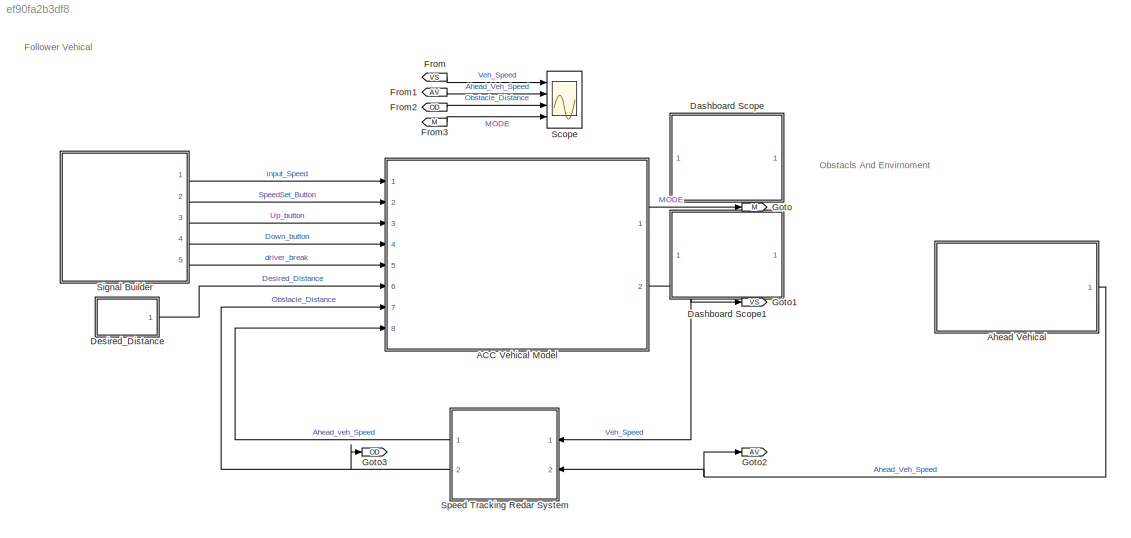
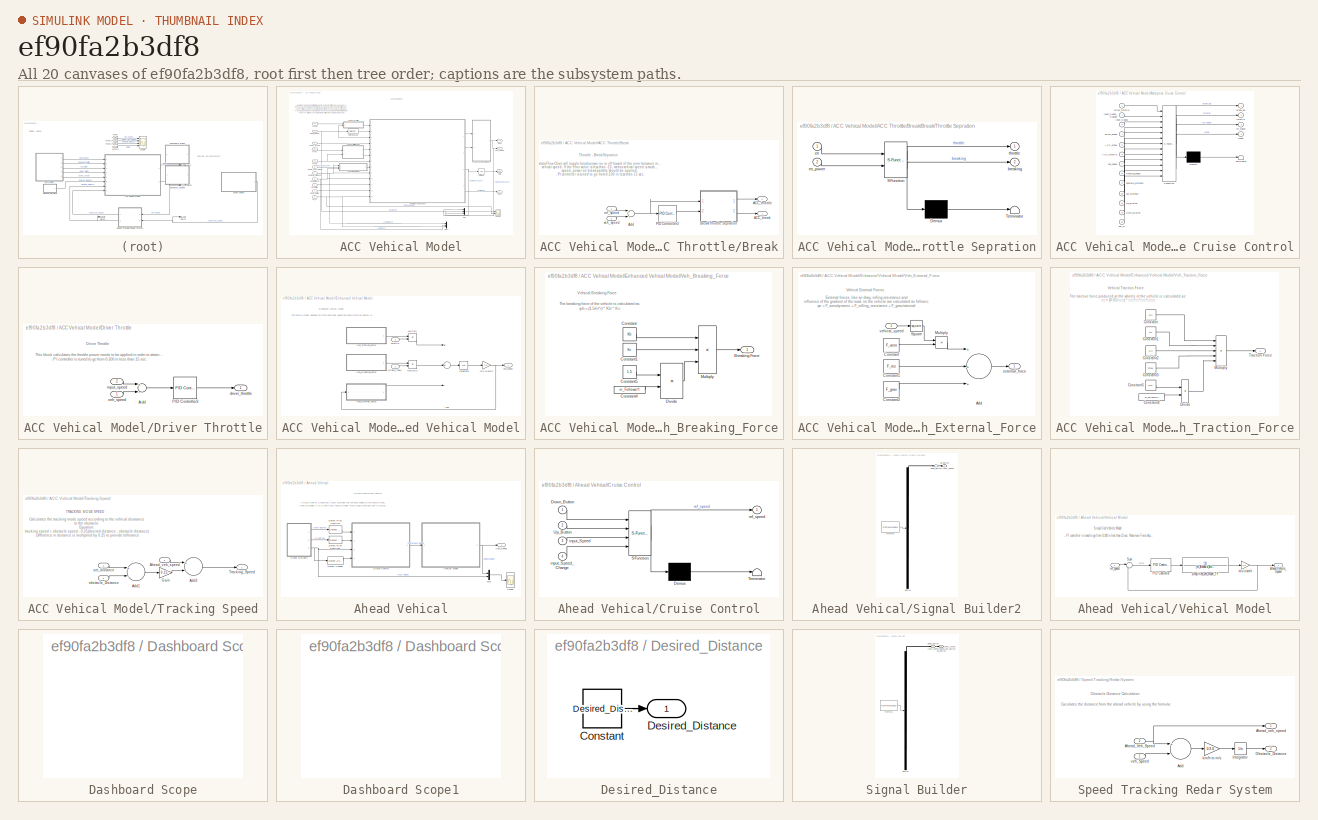
[diagram: thumbnail index - all 20 canvases of the model, root first then tree order]
MODEL slx_ef90fa2b3df8
KIND model
CONFIG AbsTol = auto
CONFIG EnableMultiTasking = off
CONFIG FixedStep = 0.02
CONFIG MaxStep = auto
CONFIG MinStep = auto
CONFIG RelTol = 1e-3
CONFIG SampleTimeConstraint = Unconstrained
CONFIG Solver = VariableStepAuto
CONFIG SolverName = VariableStepAuto
CONFIG StartTime = 0.0
CONFIG StopTime = 300
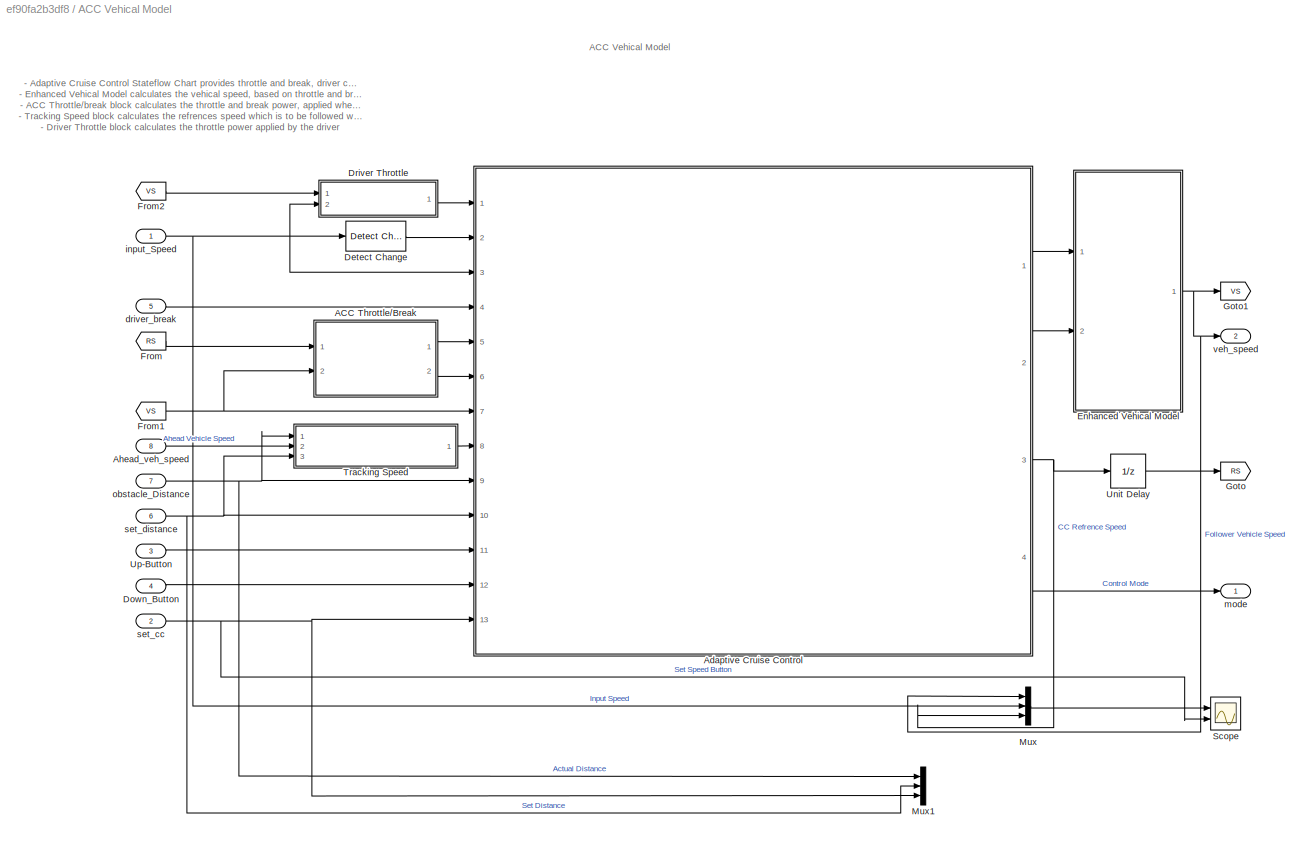
BLOCK [SubSystem] ACC Vehical Model
  Ports = [8, 2]
  RequestExecContextInheritance = off
BLOCK [SubSystem] ACC Vehical Model/ACC Throttle//Break
  Ports = [2, 2]
  RequestExecContextInheritance = off
BLOCK [Outport] ACC Vehical Model/ACC Throttle//Break/ACC_break
  IconDisplay = Port number
BLOCK [Outport] ACC Vehical Model/ACC Throttle//Break/ACC_throttle
  IconDisplay = Port number
  Port = 2
BLOCK [Sum] ACC Vehical Model/ACC Throttle//Break/Add
  InputSameDT = off
  Inputs = +-
  OutDataTypeStr = Inherit: Inherit via internal rule
  Ports = [2, 1]
  SaturateOnIntegerOverflow = off
BLOCK [SubSystem] ACC Vehical Model/ACC Throttle//Break/Break//Throttle Sepration
  ErrorFcn = Stateflow.Translate.translate
  PermitHierarchicalResolution = ExplicitOnly
  Ports = [2, 2]
  RequestExecContextInheritance = off
  SFBlockType = Chart
  TreatAsAtomicUnit = on
BLOCK [Demux] ACC Vehical Model/ACC Throttle//Break/Break//Throttle Sepration/ Demux 
  Outputs = 1
  Ports = [1, 1]
BLOCK [S-Function] ACC Vehical Model/ACC Throttle//Break/Break//Throttle Sepration/ SFunction 
  EnableBusSupport = on
  FunctionName = sf_sfun
  PortCounts = [2 3]
  Ports = [2, 3]
  SFcnIsStateOwnerBlock = off
  SFunctionDeploymentMode = off
  Tag = Stateflow S-Function acc 1
BLOCK [Terminator] ACC Vehical Model/ACC Throttle//Break/Break//Throttle Sepration/ Terminator 
BLOCK [Outport] ACC Vehical Model/ACC Throttle//Break/Break//Throttle Sepration/breaking
  IconDisplay = Port number
  Port = 2
BLOCK [Inport] ACC Vehical Model/ACC Throttle//Break/Break//Throttle Sepration/en_power
  IconDisplay = Port number
  Port = 2
BLOCK [Inport] ACC Vehical Model/ACC Throttle//Break/Break//Throttle Sepration/err
  IconDisplay = Port number
BLOCK [Outport] ACC Vehical Model/ACC Throttle//Break/Break//Throttle Sepration/throttle
  IconDisplay = Port number
BLOCK [Reference] ACC Vehical Model/ACC Throttle//Break/PID Controller3  REF=simulink/Continuous/PID Controller
  Ports = [1, 1]
  SourceBlock = simulink/Continuous/PID Controller
  SourceProductBaseCode = SL
  SourceProductName = Simulink
  SourceType = PID 1dof
BLOCK [Inport] ACC Vehical Model/ACC Throttle//Break/ref_speed
  IconDisplay = Port number
BLOCK [Inport] ACC Vehical Model/ACC Throttle//Break/veh_speed
  IconDisplay = Port number
  Port = 2
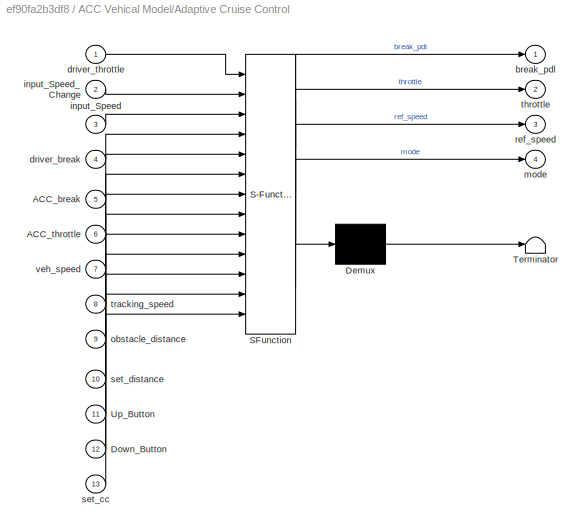
BLOCK [SubSystem] ACC Vehical Model/Adaptive Cruise Control
  ErrorFcn = Stateflow.Translate.translate
  PermitHierarchicalResolution = ExplicitOnly
  Ports = [13, 4]
  RequestExecContextInheritance = off
  SFBlockType = Chart
  TreatAsAtomicUnit = on
BLOCK [Demux] ACC Vehical Model/Adaptive Cruise Control/ Demux 
  Outputs = 1
  Ports = [1, 1]
BLOCK [S-Function] ACC Vehical Model/Adaptive Cruise Control/ SFunction 
  EnableBusSupport = on
  FunctionName = sf_sfun
  PortCounts = [13 5]
  Ports = [13, 5]
  SFcnIsStateOwnerBlock = off
  SFunctionDeploymentMode = off
  Tag = Stateflow S-Function acc 4
BLOCK [Terminator] ACC Vehical Model/Adaptive Cruise Control/ Terminator 
BLOCK [Inport] ACC Vehical Model/Adaptive Cruise Control/ACC_break
  IconDisplay = Port number
  Port = 5
BLOCK [Inport] ACC Vehical Model/Adaptive Cruise Control/ACC_throttle
  IconDisplay = Port number
  Port = 6
BLOCK [Inport] ACC Vehical Model/Adaptive Cruise Control/Down_Button
  IconDisplay = Port number
  Port = 12
BLOCK [Inport] ACC Vehical Model/Adaptive Cruise Control/Up_Button
  IconDisplay = Port number
  Port = 11
BLOCK [Outport] ACC Vehical Model/Adaptive Cruise Control/break_pdl
  IconDisplay = Port number
BLOCK [Inport] ACC Vehical Model/Adaptive Cruise Control/driver_break
  IconDisplay = Port number
  Port = 4
BLOCK [Inport] ACC Vehical Model/Adaptive Cruise Control/driver_throttle
  IconDisplay = Port number
BLOCK [Inport] ACC Vehical Model/Adaptive Cruise Control/input_Speed
  IconDisplay = Port number
  Port = 3
BLOCK [Inport] ACC Vehical Model/Adaptive Cruise Control/input_Speed_Change
  IconDisplay = Port number
  Port = 2
BLOCK [Outport] ACC Vehical Model/Adaptive Cruise Control/mode
  IconDisplay = Port number
  Port = 4
BLOCK [Inport] ACC Vehical Model/Adaptive Cruise Control/obstacle_distance
  IconDisplay = Port number
  Port = 9
BLOCK [Outport] ACC Vehical Model/Adaptive Cruise Control/ref_speed
  IconDisplay = Port number
  Port = 3
BLOCK [Inport] ACC Vehical Model/Adaptive Cruise Control/set_cc
  IconDisplay = Port number
  Port = 13
BLOCK [Inport] ACC Vehical Model/Adaptive Cruise Control/set_distance
  IconDisplay = Port number
  Port = 10
BLOCK [Outport] ACC Vehical Model/Adaptive Cruise Control/throttle
  IconDisplay = Port number
  Port = 2
BLOCK [Inport] ACC Vehical Model/Adaptive Cruise Control/tracking_speed
  IconDisplay = Port number
  Port = 8
BLOCK [Inport] ACC Vehical Model/Adaptive Cruise Control/veh_speed
  IconDisplay = Port number
  Port = 7
BLOCK [Inport] ACC Vehical Model/Ahead_veh_speed
  IconDisplay = Port number
  Port = 8
BLOCK [Reference] ACC Vehical Model/Detect Change  REF=simulink/Logic and Bit
Operations/Detect
Change
  Ports = [1, 1]
  SourceBlock = simulink/Logic and Bit\nOperations/Detect\nChange
  SourceProductBaseCode = SL
  SourceProductName = Simulink
  SourceType = Detect Change
BLOCK [Inport] ACC Vehical Model/Down_Button
  IconDisplay = Port number
  Port = 4
BLOCK [SubSystem] ACC Vehical Model/Driver Throttle
  Ports = [2, 1]
  RequestExecContextInheritance = off
BLOCK [Sum] ACC Vehical Model/Driver Throttle/Add
  InputSameDT = off
  Inputs = +-
  OutDataTypeStr = Inherit: Inherit via internal rule
  Ports = [2, 1]
  SaturateOnIntegerOverflow = off
BLOCK [Reference] ACC Vehical Model/Driver Throttle/PID Controller3  REF=simulink/Continuous/PID Controller
  Ports = [1, 1]
  SourceBlock = simulink/Continuous/PID Controller
  SourceProductBaseCode = SL
  SourceProductName = Simulink
  SourceType = PID 1dof
BLOCK [Outport] ACC Vehical Model/Driver Throttle/driver_throttle
  IconDisplay = Port number
BLOCK [Inport] ACC Vehical Model/Driver Throttle/input_speed
  IconDisplay = Port number
  Port = 2
BLOCK [Inport] ACC Vehical Model/Driver Throttle/veh_speed
  IconDisplay = Port number
BLOCK [SubSystem] ACC Vehical Model/Enhanced Vehical Model
  Ports = [2, 1]
  RequestExecContextInheritance = off
BLOCK [Sum] ACC Vehical Model/Enhanced Vehical Model/Add
  InputSameDT = off
  Inputs = ++-
  OutDataTypeStr = Inherit: Inherit via internal rule
  Ports = [3, 1]
  SaturateOnIntegerOverflow = off
BLOCK [Inport] ACC Vehical Model/Enhanced Vehical Model/Brake_Padle
  IconDisplay = Port number
BLOCK [Integrator] ACC Vehical Model/Enhanced Vehical Model/Integrator
  Ports = [1, 1]
BLOCK [Product] ACC Vehical Model/Enhanced Vehical Model/Multiply
  InputSameDT = off
  OutDataTypeStr = Inherit: Inherit via internal rule
  Ports = [2, 1]
  RndMeth = Floor
  SaturateOnIntegerOverflow = off
BLOCK [Product] ACC Vehical Model/Enhanced Vehical Model/Multiply1
  InputSameDT = off
  OutDataTypeStr = Inherit: Inherit via internal rule
  Ports = [2, 1]
  RndMeth = Floor
  SaturateOnIntegerOverflow = off
BLOCK [Inport] ACC Vehical Model/Enhanced Vehical Model/Throttle
  IconDisplay = Port number
  Port = 2
BLOCK [SubSystem] ACC Vehical Model/Enhanced Vehical Model/Veh_Breaking_Force
  Ports = [0, 1]
  RequestExecContextInheritance = off
BLOCK [Outport] ACC Vehical Model/Enhanced Vehical Model/Veh_Breaking_Force/Breaking Force 
  IconDisplay = Port number
BLOCK [Constant] ACC Vehical Model/Enhanced Vehical Model/Veh_Breaking_Force/Constant
  Value = Kb
BLOCK [Constant] ACC Vehical Model/Enhanced Vehical Model/Veh_Breaking_Force/Constant1
  Value = Kc
BLOCK [Constant] ACC Vehical Model/Enhanced Vehical Model/Veh_Breaking_Force/Constant4
  Value = m_Follower*r
BLOCK [Constant] ACC Vehical Model/Enhanced Vehical Model/Veh_Breaking_Force/Constant5
  Value = 1.5
BLOCK [Product] ACC Vehical Model/Enhanced Vehical Model/Veh_Breaking_Force/Divide
  InputSameDT = off
  Inputs = */
  OutDataTypeStr = Inherit: Inherit via internal rule
  Ports = [2, 1]
  RndMeth = Floor
  SaturateOnIntegerOverflow = off
BLOCK [Product] ACC Vehical Model/Enhanced Vehical Model/Veh_Breaking_Force/Multiply
  InputSameDT = off
  Inputs = 3
  OutDataTypeStr = Inherit: Inherit via internal rule
  Ports = [3, 1]
  RndMeth = Floor
  SaturateOnIntegerOverflow = off
BLOCK [SubSystem] ACC Vehical Model/Enhanced Vehical Model/Veh_External_Force
  Ports = [1, 1]
  RequestExecContextInheritance = off
BLOCK [Sum] ACC Vehical Model/Enhanced Vehical Model/Veh_External_Force/Add
  InputSameDT = off
  Inputs = +++
  OutDataTypeStr = Inherit: Inherit via internal rule
  Ports = [3, 1]
  SaturateOnIntegerOverflow = off
BLOCK [Constant] ACC Vehical Model/Enhanced Vehical Model/Veh_External_Force/Constant
  Value = F_aero
BLOCK [Constant] ACC Vehical Model/Enhanced Vehical Model/Veh_External_Force/Constant1
  Value = F_res
BLOCK [Constant] ACC Vehical Model/Enhanced Vehical Model/Veh_External_Force/Constant2
  Value = F_grav
BLOCK [Product] ACC Vehical Model/Enhanced Vehical Model/Veh_External_Force/Multiply
  InputSameDT = off
  OutDataTypeStr = Inherit: Inherit via internal rule
  Ports = [2, 1]
  RndMeth = Floor
  SaturateOnIntegerOverflow = off
BLOCK [Math] ACC Vehical Model/Enhanced Vehical Model/Veh_External_Force/Square
  Operator = square
  Ports = [1, 1]
BLOCK [Outport] ACC Vehical Model/Enhanced Vehical Model/Veh_External_Force/external_force
  IconDisplay = Port number
BLOCK [Inport] ACC Vehical Model/Enhanced Vehical Model/Veh_External_Force/vehical_speed
  IconDisplay = Port number
BLOCK [SubSystem] ACC Vehical Model/Enhanced Vehical Model/Veh_Traction_Force
  Ports = [0, 1]
  RequestExecContextInheritance = off
BLOCK [Constant] ACC Vehical Model/Enhanced Vehical Model/Veh_Traction_Force/Constant
  Value = Rtr
BLOCK [Constant] ACC Vehical Model/Enhanced Vehical Model/Veh_Traction_Force/Constant1
  Value = Rf
BLOCK [Constant] ACC Vehical Model/Enhanced Vehical Model/Veh_Traction_Force/Constant2
  Value = Ctr
BLOCK [Constant] ACC Vehical Model/Enhanced Vehical Model/Veh_Traction_Force/Constant3
  Value = Tmax
BLOCK [Constant] ACC Vehical Model/Enhanced Vehical Model/Veh_Traction_Force/Constant4
  Value = m_Follower*r
BLOCK [Constant] ACC Vehical Model/Enhanced Vehical Model/Veh_Traction_Force/Constant5
  Value = 0.01
BLOCK [Product] ACC Vehical Model/Enhanced Vehical Model/Veh_Traction_Force/Divide
  InputSameDT = off
  Inputs = */
  OutDataTypeStr = Inherit: Inherit via internal rule
  Ports = [2, 1]
  RndMeth = Floor
  SaturateOnIntegerOverflow = off
BLOCK [Product] ACC Vehical Model/Enhanced Vehical Model/Veh_Traction_Force/Multiply
  InputSameDT = off
  Inputs = 5
  OutDataTypeStr = Inherit: Inherit via internal rule
  Ports = [5, 1]
  RndMeth = Floor
  SaturateOnIntegerOverflow = off
BLOCK [Outport] ACC Vehical Model/Enhanced Vehical Model/Veh_Traction_Force/Traction Force
  IconDisplay = Port number
BLOCK [Gain] ACC Vehical Model/Enhanced Vehical Model/m//s to km//h
  Gain = 3.6
  OutDataTypeStr = Inherit: Inherit via internal rule
  ParamDataTypeStr = Inherit: Inherit via internal rule
  SaturateOnIntegerOverflow = off
BLOCK [Outport] ACC Vehical Model/Enhanced Vehical Model/veh_speed
  IconDisplay = Port number
BLOCK [From] ACC Vehical Model/From
  GotoTag = RS
BLOCK [From] ACC Vehical Model/From1
  GotoTag = VS
BLOCK [From] ACC Vehical Model/From2
  GotoTag = VS
BLOCK [Goto] ACC Vehical Model/Goto
  GotoTag = RS
BLOCK [Goto] ACC Vehical Model/Goto1
  GotoTag = VS
BLOCK [Mux] ACC Vehical Model/Mux
  DisplayOption = bar
  Inputs = 3
  Ports = [3, 1]
BLOCK [Mux] ACC Vehical Model/Mux1
  DisplayOption = bar
  Inputs = 3
  Ports = [3, 1]
BLOCK [Scope] ACC Vehical Model/Scope
  Floating = off
  NumInputPorts = 2
  Ports = [2]
  ScopeSpecificationString = Simulink.scopes.TimeScopeBlockCfg('CurrentConfiguration', extmgr.ConfigurationSet(extmgr.Configuration('Core','General UI',true),extmgr.Configuration('Core','Source UI',true),extmgr.Configuration('Sources','WiredSimulink',true,'DataLoggingVariableName','ScopeData2'),extmgr.Configuration('Visuals','Time Domain',true,'SerializedDisplays',{struct('MinYLimReal','-19.75009','MaxYLimReal','127.89501','Y...<+2522ch>
BLOCK [SubSystem] ACC Vehical Model/Tracking Speed
  Ports = [3, 1]
  RequestExecContextInheritance = off
BLOCK [Sum] ACC Vehical Model/Tracking Speed/Add1
  InputSameDT = off
  Inputs = +-
  OutDataTypeStr = Inherit: Inherit via internal rule
  Ports = [2, 1]
  SaturateOnIntegerOverflow = off
BLOCK [Sum] ACC Vehical Model/Tracking Speed/Add2
  InputSameDT = off
  Inputs = +-
  OutDataTypeStr = Inherit: Inherit via internal rule
  Ports = [2, 1]
  SaturateOnIntegerOverflow = off
BLOCK [Inport] ACC Vehical Model/Tracking Speed/Ahead_veh_speed
  IconDisplay = Port number
  Port = 2
BLOCK [Gain] ACC Vehical Model/Tracking Speed/Gain
  Gain = 0.25
  OutDataTypeStr = Inherit: Inherit via internal rule
  ParamDataTypeStr = Inherit: Inherit via internal rule
  SaturateOnIntegerOverflow = off
BLOCK [Outport] ACC Vehical Model/Tracking Speed/Tracking_Speed
  IconDisplay = Port number
BLOCK [Inport] ACC Vehical Model/Tracking Speed/obstacle_Distance
  IconDisplay = Port number
BLOCK [Inport] ACC Vehical Model/Tracking Speed/set_distance
  IconDisplay = Port number
  Port = 3
BLOCK [UnitDelay] ACC Vehical Model/Unit Delay
  InputProcessing = Elements as channels (sample based)
  SampleTime = -1
BLOCK [Inport] ACC Vehical Model/Up-Button
  IconDisplay = Port number
  Port = 3
BLOCK [Inport] ACC Vehical Model/driver_break
  IconDisplay = Port number
  Port = 5
BLOCK [Inport] ACC Vehical Model/input_Speed
  IconDisplay = Port number
BLOCK [Outport] ACC Vehical Model/mode
  IconDisplay = Port number
BLOCK [Inport] ACC Vehical Model/obstacle_Distance
  IconDisplay = Port number
  Port = 7
BLOCK [Inport] ACC Vehical Model/set_cc
  IconDisplay = Port number
  Port = 2
BLOCK [Inport] ACC Vehical Model/set_distance 
  IconDisplay = Port number
  Port = 6
BLOCK [Outport] ACC Vehical Model/veh_speed
  IconDisplay = Port number
  Port = 2
BLOCK [SubSystem] Ahead Vehical
  Ports = [0, 1]
  RequestExecContextInheritance = off
BLOCK [SubSystem] Ahead Vehical/Cruise Control
  ErrorFcn = Stateflow.Translate.translate
  PermitHierarchicalResolution = ExplicitOnly
  Ports = [4, 1]
  RequestExecContextInheritance = off
  SFBlockType = Chart
  TreatAsAtomicUnit = on
BLOCK [Demux] Ahead Vehical/Cruise Control/ Demux 
  Outputs = 1
  Ports = [1, 1]
BLOCK [S-Function] Ahead Vehical/Cruise Control/ SFunction 
  EnableBusSupport = on
  FunctionName = sf_sfun
  PortCounts = [4 2]
  Ports = [4, 2]
  SFcnIsStateOwnerBlock = off
  SFunctionDeploymentMode = off
  Tag = Stateflow S-Function acc 3
BLOCK [Terminator] Ahead Vehical/Cruise Control/ Terminator 
BLOCK [Inport] Ahead Vehical/Cruise Control/Down_Button
  IconDisplay = Port number
BLOCK [Inport] Ahead Vehical/Cruise Control/Up_Button
  IconDisplay = Port number
  Port = 2
BLOCK [Inport] Ahead Vehical/Cruise Control/input_Speed
  IconDisplay = Port number
  Port = 3
BLOCK [Inport] Ahead Vehical/Cruise Control/input_Speed_Change
  IconDisplay = Port number
  Port = 4
BLOCK [Outport] Ahead Vehical/Cruise Control/ref_speed
  IconDisplay = Port number
BLOCK [Reference] Ahead Vehical/Detect Change  REF=simulink/Logic and Bit
Operations/Detect
Change
  Ports = [1, 1]
  SourceBlock = simulink/Logic and Bit\nOperations/Detect\nChange
  SourceProductBaseCode = SL
  SourceProductName = Simulink
  SourceType = Detect Change
BLOCK [Reference] Ahead Vehical/Detect Rise Positive  REF=simulink/Logic and Bit
Operations/Detect Rise
Positive
  Ports = [1, 1]
  SourceBlock = simulink/Logic and Bit\nOperations/Detect Rise\nPositive
  SourceProductBaseCode = SL
  SourceProductName = Simulink
  SourceType = Detect Rise Positive
BLOCK [Reference] Ahead Vehical/Detect Rise Positive1  REF=simulink/Logic and Bit
Operations/Detect Rise
Positive
  Ports = [1, 1]
  SourceBlock = simulink/Logic and Bit\nOperations/Detect Rise\nPositive
  SourceProductBaseCode = SL
  SourceProductName = Simulink
  SourceType = Detect Rise Positive
BLOCK [Mux] Ahead Vehical/Mux
  DisplayOption = bar
  Inputs = 2
  Ports = [2, 1]
BLOCK [Scope] Ahead Vehical/Scope
  Floating = off
  NumInputPorts = 1
  Ports = [1]
  ScopeSpecificationString = Simulink.scopes.TimeScopeBlockCfg('CurrentConfiguration', extmgr.ConfigurationSet(extmgr.Configuration('Core','General UI',true),extmgr.Configuration('Core','Source UI',true),extmgr.Configuration('Sources','WiredSimulink',true,'DataLoggingVariableName','ScopeData1'),extmgr.Configuration('Visuals','Time Domain',true,'SerializedDisplays',{struct('MinYLimReal','-14.38813','MaxYLimReal','129.49314','Y...<+1840ch>
BLOCK [SubSystem] Ahead Vehical/Signal Builder2
  ClipboardFcn = sigbuilder_block('clipboard');
  CloseFcn = sigbuilder_block('close');
  ContinueFcn = sigbuilder_block('continue');
  CopyFcn = sigbuilder_block('copy');
  DeleteFcn = sigbuilder_block('delete');
  LoadFcn = sigbuilder_block('load');
  MaskHideContents = on
  ModelCloseFcn = sigbuilder_block('modelClose');
  NameChangeFcn = sigbuilder_block('namechange');
  OpenFcn = sigbuilder_block('open',[156 150.75 550.5 399.75 ]);
  PauseFcn = sigbuilder_block('pause');
  Ports = [0, 3]
  PreSaveFcn = sigbuilder_block('preSave');
  RequestExecContextInheritance = off
  StartFcn = sigbuilder_block('start');
  StopFcn = sigbuilder_block('stop');
  Tag = STV Subsys
BLOCK [Demux] Ahead Vehical/Signal Builder2/Demux
  Outputs = 3
  Ports = [1, 3]
  Tag = STV Demux
BLOCK [Outport] Ahead Vehical/Signal Builder2/Down_Button
  IconDisplay = Port number
  Tag = STV Outport
BLOCK [FromWorkspace] Ahead Vehical/Signal Builder2/FromWs
  SampleTime = 0
  Tag = STV FromWs
  VariableName = tuvar
  ZeroCross = on
BLOCK [Outport] Ahead Vehical/Signal Builder2/Input_Speed
  IconDisplay = Port number
  Port = 3
  Tag = STV Outport
BLOCK [Outport] Ahead Vehical/Signal Builder2/Up_Button
  IconDisplay = Port number
  Port = 2
  Tag = STV Outport
BLOCK [Outport] Ahead Vehical/Veh_Speed
  IconDisplay = Port number
BLOCK [SubSystem] Ahead Vehical/Vehical Model
  Ports = [1, 1]
  RequestExecContextInheritance = off
BLOCK [Outport] Ahead Vehical/Vehical Model/Ahead_Vehicle_Speed
  IconDisplay = Port number
BLOCK [Reference] Ahead Vehical/Vehical Model/PID Controller  REF=simulink/Continuous/PID Controller
  Ports = [1, 1]
  SourceBlock = simulink/Continuous/PID Controller
  SourceProductBaseCode = SL
  SourceProductName = Simulink
  SourceType = PID 1dof
BLOCK [Sum] Ahead Vehical/Vehical Model/Sum
  IconShape = round
  InputSameDT = off
  Inputs = |+-
  OutDataTypeStr = Inherit: Inherit via internal rule
  Ports = [2, 1]
  SaturateOnIntegerOverflow = off
BLOCK [Gain] Ahead Vehical/Vehical Model/m//s to km//h
  Gain = 3.6
  OutDataTypeStr = Inherit: Inherit via internal rule
  ParamDataTypeStr = Inherit: Inherit via internal rule
  SaturateOnIntegerOverflow = off
BLOCK [Inport] Ahead Vehical/Vehical Model/ref_speed
  IconDisplay = Port number
BLOCK [TransferFcn] Ahead Vehical/Vehical Model/simplified_veh_model_TF
  Denominator = [m_Ahead b_Ahead]
BLOCK [SubSystem] Dashboard Scope
  DialogController = hmiCreateDDGDialog
  IsWebBlock = on
  MaskHideContents = on
  Ports = []
  RequestExecContextInheritance = off
BLOCK [SubSystem] Dashboard Scope1
  DialogController = hmiCreateDDGDialog
  IsWebBlock = on
  MaskHideContents = on
  Ports = []
  RequestExecContextInheritance = off
BLOCK [SubSystem] Desired_Distance
  Ports = [0, 1]
  RequestExecContextInheritance = off
BLOCK [Constant] Desired_Distance/Constant
  Value = Desired_Distance
BLOCK [Outport] Desired_Distance/Desired_Distance
  IconDisplay = Port number
BLOCK [From] From
  GotoTag = VS
BLOCK [From] From1
  GotoTag = AV
BLOCK [From] From2
  GotoTag = OD
BLOCK [From] From3
  GotoTag = M
BLOCK [Goto] Goto
  GotoTag = M
BLOCK [Goto] Goto1
  GotoTag = VS
BLOCK [Goto] Goto2
  GotoTag = AV
BLOCK [Goto] Goto3
  GotoTag = OD
BLOCK [Scope] Scope
  Floating = off
  NumInputPorts = 4
  Ports = [4]
  ScopeSpecificationString = Simulink.scopes.TimeScopeBlockCfg('CurrentConfiguration', extmgr.ConfigurationSet(extmgr.Configuration('Core','General UI',true),extmgr.Configuration('Core','Source UI',true),extmgr.Configuration('Sources','WiredSimulink',true,'DataLoggingVariableName','ScopeData1'),extmgr.Configuration('Visuals','Time Domain',true,'PlotType','Line','SerializedDisplays',{struct('MinYLimReal','-14.61236','MaxYLimRe...<+3828ch>
BLOCK [SubSystem] Signal Builder
  ClipboardFcn = sigbuilder_block('clipboard');
  CloseFcn = sigbuilder_block('close');
  ContinueFcn = sigbuilder_block('continue');
  CopyFcn = sigbuilder_block('copy');
  DeleteFcn = sigbuilder_block('delete');
  LoadFcn = sigbuilder_block('load',[0 -132 1440 723.6 ]);
  MaskHideContents = on
  ModelCloseFcn = sigbuilder_block('modelClose');
  NameChangeFcn = sigbuilder_block('namechange');
  OpenFcn = sigbuilder_block('open',[0 192 1152 560.25 ]);
  PauseFcn = sigbuilder_block('pause');
  Ports = [0, 5]
  PreSaveFcn = sigbuilder_block('preSave');
  RequestExecContextInheritance = off
  StartFcn = sigbuilder_block('start');
  StopFcn = sigbuilder_block('stop');
  Tag = STV Subsys
BLOCK [Demux] Signal Builder/Demux
  Outputs = 5
  Ports = [1, 5]
  Tag = STV Demux
BLOCK [Outport] Signal Builder/Down_Button
  IconDisplay = Port number
  Port = 4
  Tag = STV Outport
BLOCK [Outport] Signal Builder/Driver_break
  IconDisplay = Port number
  Port = 5
  Tag = STV Outport
BLOCK [FromWorkspace] Signal Builder/FromWs
  SampleTime = 0
  Tag = STV FromWs
  VariableName = tuvar
  ZeroCross = on
BLOCK [Outport] Signal Builder/Input_Speed
  IconDisplay = Port number
  Tag = STV Outport
BLOCK [Outport] Signal Builder/Speed_Set_Button
  IconDisplay = Port number
  Port = 2
  Tag = STV Outport
BLOCK [Outport] Signal Builder/Up_Button
  IconDisplay = Port number
  Port = 3
  Tag = STV Outport
BLOCK [SubSystem] Speed Tracking Redar System
  Ports = [2, 2]
  RequestExecContextInheritance = off
BLOCK [Sum] Speed Tracking Redar System/Add
  InputSameDT = off
  Inputs = +-
  OutDataTypeStr = Inherit: Inherit via internal rule
  Ports = [2, 1]
  SaturateOnIntegerOverflow = off
BLOCK [Inport] Speed Tracking Redar System/Ahead_Veh_Speed
  IconDisplay = Port number
  Port = 2
BLOCK [Outport] Speed Tracking Redar System/Ahead_veh_speed
  IconDisplay = Port number
BLOCK [Integrator] Speed Tracking Redar System/Integrator
  InitialCondition = 100
  Ports = [1, 1]
BLOCK [Outport] Speed Tracking Redar System/Obstacle_Distance
  IconDisplay = Port number
  Port = 2
BLOCK [Gain] Speed Tracking Redar System/km//h to m//s
  Gain = 1/3.6
  OutDataTypeStr = Inherit: Inherit via internal rule
  ParamDataTypeStr = Inherit: Inherit via internal rule
  SaturateOnIntegerOverflow = off
BLOCK [Inport] Speed Tracking Redar System/veh_Speed
  IconDisplay = Port number
ANNOTATION (root): Follower Vehical
ANNOTATION (root): Obstacls And Envirnoment
ANNOTATION ACC Vehical Model: - Adaptive Cruise Control Stateflow Chart provides throttle and break, driver control if ACC mode is off. It also provides the refrence speed based on which the ACC throttle power and break power is calculated. - Enhanced Vehical Model calculates the vehical speed, based on throttle and break power. - ACC Throttle/break block calculates the throttle and break power, applied when the vehical is in ...<+236ch>
ANNOTATION ACC Vehical Model: ACC Vehical Model
ANNOTATION ACC Vehical Model/ACC Throttle//Break: StateFlow Chart will toggle break power on or off based of the error between refrence speed and vehical speed. If the error value is less than -10, means vehical speed is much greater than refrence speed, power on break paddle should be applied. - PI controller is tuned to go from 0-100 in less than 15 sec.
ANNOTATION ACC Vehical Model/ACC Throttle//Break: Throttle - Break Sepration
ANNOTATION ACC Vehical Model/Driver Throttle: This block calculates the throttle power needs to be applied in order to attain the input speed - PI controller is tuned to go from 0-100 in less than 15 sec.
ANNOTATION ACC Vehical Model/Driver Throttle: Driver Throttle
ANNOTATION ACC Vehical Model/Enhanced Vehical Model: The vehicle model depends on three nonlinear equations describing the engine, brake system and dynamics of the vehicle.
ANNOTATION ACC Vehical Model/Enhanced Vehical Model: Enhanced Vehical Model
ANNOTATION ACC Vehical Model/Enhanced Vehical Model/Veh_Breaking_Force: The breaking force of the vehicle is calculated as: φb = (1.5/m*r) * Kb * Kc
ANNOTATION ACC Vehical Model/Enhanced Vehical Model/Veh_Breaking_Force: Vehical Breaking Force
ANNOTATION ACC Vehical Model/Enhanced Vehical Model/Veh_External_Force: External forces, like air drag, rolling resistance and influence of the gradient of the road, on the vehicle are calculated as follows: φc = F_aerodynamic + F_rolling_resistance + F_gravitational
ANNOTATION ACC Vehical Model/Enhanced Vehical Model/Veh_External_Force: Vehical External Forces
ANNOTATION ACC Vehical Model/Enhanced Vehical Model/Veh_Traction_Force: The tractive force produced at the wheels of the vehicle is calculated as: 𝜑𝑡 = (0.01/𝑚∗𝑟) * 𝑅𝑡𝑟*𝑅𝑓*𝐶𝑡𝑟*𝑇𝑚𝑎𝑥
ANNOTATION ACC Vehical Model/Enhanced Vehical Model/Veh_Traction_Force: Vehical Traction Force
ANNOTATION ACC Vehical Model/Tracking Speed: Calculates the tracking mode speed according to the vehical disatance to the obstacle. Equation: tracking speed = obstacle speed - 0.25(desired distance - obstacle distance) - Difference in distance is multiplied by 0.25 to provide tollerance
ANNOTATION ACC Vehical Model/Tracking Speed: TRACKING MODE SPEED
ANNOTATION Ahead Vehical: - Cruise Control Stateflow Chart provides the refrence speed to the vehicle model to actuate. - Vehicle Model is a Simplified Vehicle Model which uses Newton's Law to calculate speed.
ANNOTATION Ahead Vehical: Cruise Controlled Vehicle
ANNOTATION Ahead Vehical/Vehical Model: - PI controller is tuned to go from 0-100 in less than 15 sec. Maximum Force Applied by the controller is limited to 4200 Nm.
ANNOTATION Ahead Vehical/Vehical Model: Simplified Vehicle Model
ANNOTATION Speed Tracking Redar System: Caculates the distance from the ahead vehicle by using the formula:
ANNOTATION Speed Tracking Redar System: Obstacle Distance Calculation
NET ACC Vehical Model/ACC Throttle//Break/Add:1 -> ACC Vehical Model/ACC Throttle//Break/Break//Throttle Sepration:1, ACC Vehical Model/ACC Throttle//Break/PID Controller3:1
LINE ACC Vehical Model/ACC Throttle//Break/Break//Throttle Sepration:1 -> ACC Vehical Model/ACC Throttle//Break/ACC_throttle:1
LINE ACC Vehical Model/ACC Throttle//Break/Break//Throttle Sepration:2 -> ACC Vehical Model/ACC Throttle//Break/ACC_break:1
LINE ACC Vehical Model/ACC Throttle//Break/PID Controller3:1 -> ACC Vehical Model/ACC Throttle//Break/Break//Throttle Sepration:2
LINE ACC Vehical Model/ACC Throttle//Break/ref_speed:1 -> ACC Vehical Model/ACC Throttle//Break/Add:1
LINE ACC Vehical Model/ACC Throttle//Break/veh_speed:1 -> ACC Vehical Model/ACC Throttle//Break/Add:2
LINE ACC Vehical Model/ACC Throttle//Break:1 -> ACC Vehical Model/Adaptive Cruise Control:5
LINE ACC Vehical Model/ACC Throttle//Break:2 -> ACC Vehical Model/Adaptive Cruise Control:6
LINE ACC Vehical Model/Adaptive Cruise Control:1 -> ACC Vehical Model/Enhanced Vehical Model:1
LINE ACC Vehical Model/Adaptive Cruise Control:2 -> ACC Vehical Model/Enhanced Vehical Model:2
NET ACC Vehical Model/Adaptive Cruise Control:3 -> ACC Vehical Model/Mux:3, ACC Vehical Model/Unit Delay:1
LINE ACC Vehical Model/Adaptive Cruise Control:4 -> ACC Vehical Model/mode:1
LINE ACC Vehical Model/Ahead_veh_speed:1 -> ACC Vehical Model/Tracking Speed:2
LINE ACC Vehical Model/Detect Change:1 -> ACC Vehical Model/Adaptive Cruise Control:2
LINE ACC Vehical Model/Down_Button:1 -> ACC Vehical Model/Adaptive Cruise Control:12
LINE ACC Vehical Model/Driver Throttle/Add:1 -> ACC Vehical Model/Driver Throttle/PID Controller3:1
LINE ACC Vehical Model/Driver Throttle/PID Controller3:1 -> ACC Vehical Model/Driver Throttle/driver_throttle:1
LINE ACC Vehical Model/Driver Throttle/input_speed:1 -> ACC Vehical Model/Driver Throttle/Add:1
LINE ACC Vehical Model/Driver Throttle/veh_speed:1 -> ACC Vehical Model/Driver Throttle/Add:2
LINE ACC Vehical Model/Driver Throttle:1 -> ACC Vehical Model/Adaptive Cruise Control:1
LINE ACC Vehical Model/Enhanced Vehical Model/Add:1 -> ACC Vehical Model/Enhanced Vehical Model/Integrator:1
LINE ACC Vehical Model/Enhanced Vehical Model/Brake_Padle:1 -> ACC Vehical Model/Enhanced Vehical Model/Multiply1:2
LINE ACC Vehical Model/Enhanced Vehical Model/Integrator:1 -> ACC Vehical Model/Enhanced Vehical Model/m//s to km//h:1
LINE ACC Vehical Model/Enhanced Vehical Model/Multiply1:1 -> ACC Vehical Model/Enhanced Vehical Model/Add:2
LINE ACC Vehical Model/Enhanced Vehical Model/Multiply:1 -> ACC Vehical Model/Enhanced Vehical Model/Add:1
LINE ACC Vehical Model/Enhanced Vehical Model/Throttle:1 -> ACC Vehical Model/Enhanced Vehical Model/Multiply:2
LINE ACC Vehical Model/Enhanced Vehical Model/Veh_Breaking_Force/Constant1:1 -> ACC Vehical Model/Enhanced Vehical Model/Veh_Breaking_Force/Multiply:2
LINE ACC Vehical Model/Enhanced Vehical Model/Veh_Breaking_Force/Constant4:1 -> ACC Vehical Model/Enhanced Vehical Model/Veh_Breaking_Force/Divide:2
LINE ACC Vehical Model/Enhanced Vehical Model/Veh_Breaking_Force/Constant5:1 -> ACC Vehical Model/Enhanced Vehical Model/Veh_Breaking_Force/Divide:1
LINE ACC Vehical Model/Enhanced Vehical Model/Veh_Breaking_Force/Constant:1 -> ACC Vehical Model/Enhanced Vehical Model/Veh_Breaking_Force/Multiply:1
LINE ACC Vehical Model/Enhanced Vehical Model/Veh_Breaking_Force/Divide:1 -> ACC Vehical Model/Enhanced Vehical Model/Veh_Breaking_Force/Multiply:3
LINE ACC Vehical Model/Enhanced Vehical Model/Veh_Breaking_Force/Multiply:1 -> ACC Vehical Model/Enhanced Vehical Model/Veh_Breaking_Force/Breaking Force :1
LINE ACC Vehical Model/Enhanced Vehical Model/Veh_Breaking_Force:1 -> ACC Vehical Model/Enhanced Vehical Model/Multiply1:1
LINE ACC Vehical Model/Enhanced Vehical Model/Veh_External_Force/Add:1 -> ACC Vehical Model/Enhanced Vehical Model/Veh_External_Force/external_force:1
LINE ACC Vehical Model/Enhanced Vehical Model/Veh_External_Force/Constant1:1 -> ACC Vehical Model/Enhanced Vehical Model/Veh_External_Force/Add:2
LINE ACC Vehical Model/Enhanced Vehical Model/Veh_External_Force/Constant2:1 -> ACC Vehical Model/Enhanced Vehical Model/Veh_External_Force/Add:3
LINE ACC Vehical Model/Enhanced Vehical Model/Veh_External_Force/Constant:1 -> ACC Vehical Model/Enhanced Vehical Model/Veh_External_Force/Multiply:2
LINE ACC Vehical Model/Enhanced Vehical Model/Veh_External_Force/Multiply:1 -> ACC Vehical Model/Enhanced Vehical Model/Veh_External_Force/Add:1
LINE ACC Vehical Model/Enhanced Vehical Model/Veh_External_Force/Square:1 -> ACC Vehical Model/Enhanced Vehical Model/Veh_External_Force/Multiply:1
LINE ACC Vehical Model/Enhanced Vehical Model/Veh_External_Force/vehical_speed:1 -> ACC Vehical Model/Enhanced Vehical Model/Veh_External_Force/Square:1
LINE ACC Vehical Model/Enhanced Vehical Model/Veh_External_Force:1 -> ACC Vehical Model/Enhanced Vehical Model/Add:3
LINE ACC Vehical Model/Enhanced Vehical Model/Veh_Traction_Force/Constant1:1 -> ACC Vehical Model/Enhanced Vehical Model/Veh_Traction_Force/Multiply:2
LINE ACC Vehical Model/Enhanced Vehical Model/Veh_Traction_Force/Constant2:1 -> ACC Vehical Model/Enhanced Vehical Model/Veh_Traction_Force/Multiply:3
LINE ACC Vehical Model/Enhanced Vehical Model/Veh_Traction_Force/Constant3:1 -> ACC Vehical Model/Enhanced Vehical Model/Veh_Traction_Force/Multiply:4
LINE ACC Vehical Model/Enhanced Vehical Model/Veh_Traction_Force/Constant4:1 -> ACC Vehical Model/Enhanced Vehical Model/Veh_Traction_Force/Divide:2
LINE ACC Vehical Model/Enhanced Vehical Model/Veh_Traction_Force/Constant5:1 -> ACC Vehical Model/Enhanced Vehical Model/Veh_Traction_Force/Divide:1
LINE ACC Vehical Model/Enhanced Vehical Model/Veh_Traction_Force/Constant:1 -> ACC Vehical Model/Enhanced Vehical Model/Veh_Traction_Force/Multiply:1
LINE ACC Vehical Model/Enhanced Vehical Model/Veh_Traction_Force/Divide:1 -> ACC Vehical Model/Enhanced Vehical Model/Veh_Traction_Force/Multiply:5
LINE ACC Vehical Model/Enhanced Vehical Model/Veh_Traction_Force/Multiply:1 -> ACC Vehical Model/Enhanced Vehical Model/Veh_Traction_Force/Traction Force:1
LINE ACC Vehical Model/Enhanced Vehical Model/Veh_Traction_Force:1 -> ACC Vehical Model/Enhanced Vehical Model/Multiply:1
NET ACC Vehical Model/Enhanced Vehical Model/m//s to km//h:1 -> ACC Vehical Model/Enhanced Vehical Model/Veh_External_Force:1, ACC Vehical Model/Enhanced Vehical Model/veh_speed:1
NET ACC Vehical Model/Enhanced Vehical Model:1 -> ACC Vehical Model/Goto1:1, ACC Vehical Model/Mux:1, ACC Vehical Model/veh_speed:1
NET ACC Vehical Model/From1:1 -> ACC Vehical Model/ACC Throttle//Break:2, ACC Vehical Model/Adaptive Cruise Control:7
LINE ACC Vehical Model/From2:1 -> ACC Vehical Model/Driver Throttle:1
LINE ACC Vehical Model/From:1 -> ACC Vehical Model/ACC Throttle//Break:1
LINE ACC Vehical Model/Mux:1 -> ACC Vehical Model/Scope:1
LINE ACC Vehical Model/Tracking Speed/Add1:1 -> ACC Vehical Model/Tracking Speed/Gain:1
LINE ACC Vehical Model/Tracking Speed/Add2:1 -> ACC Vehical Model/Tracking Speed/Tracking_Speed:1
LINE ACC Vehical Model/Tracking Speed/Ahead_veh_speed:1 -> ACC Vehical Model/Tracking Speed/Add2:1
LINE ACC Vehical Model/Tracking Speed/Gain:1 -> ACC Vehical Model/Tracking Speed/Add2:2
LINE ACC Vehical Model/Tracking Speed/obstacle_Distance:1 -> ACC Vehical Model/Tracking Speed/Add1:2
LINE ACC Vehical Model/Tracking Speed/set_distance:1 -> ACC Vehical Model/Tracking Speed/Add1:1
LINE ACC Vehical Model/Tracking Speed:1 -> ACC Vehical Model/Adaptive Cruise Control:8
LINE ACC Vehical Model/Unit Delay:1 -> ACC Vehical Model/Goto:1
LINE ACC Vehical Model/Up-Button:1 -> ACC Vehical Model/Adaptive Cruise Control:11
LINE ACC Vehical Model/driver_break:1 -> ACC Vehical Model/Adaptive Cruise Control:4
NET ACC Vehical Model/input_Speed:1 -> ACC Vehical Model/Adaptive Cruise Control:3, ACC Vehical Model/Detect Change:1, ACC Vehical Model/Driver Throttle:2, ACC Vehical Model/Mux:2
NET ACC Vehical Model/obstacle_Distance:1 -> ACC Vehical Model/Adaptive Cruise Control:9, ACC Vehical Model/Mux1:1, ACC Vehical Model/Tracking Speed:1
NET ACC Vehical Model/set_cc:1 -> ACC Vehical Model/Adaptive Cruise Control:13, ACC Vehical Model/Mux1:3, ACC Vehical Model/Scope:2
NET ACC Vehical Model/set_distance :1 -> ACC Vehical Model/Adaptive Cruise Control:10, ACC Vehical Model/Mux1:2, ACC Vehical Model/Tracking Speed:3
LINE ACC Vehical Model:1 -> Goto:1
NET ACC Vehical Model:2 -> Goto1:1, Speed Tracking Redar System:1
LINE Ahead Vehical/Cruise Control:1 -> Ahead Vehical/Vehical Model:1
LINE Ahead Vehical/Detect Change:1 -> Ahead Vehical/Cruise Control:4
LINE Ahead Vehical/Detect Rise Positive1:1 -> Ahead Vehical/Cruise Control:2
LINE Ahead Vehical/Detect Rise Positive:1 -> Ahead Vehical/Cruise Control:1
LINE Ahead Vehical/Mux:1 -> Ahead Vehical/Scope:1
LINE Ahead Vehical/Signal Builder2:1 -> Ahead Vehical/Detect Rise Positive:1
LINE Ahead Vehical/Signal Builder2:2 -> Ahead Vehical/Detect Rise Positive1:1
NET Ahead Vehical/Signal Builder2:3 -> Ahead Vehical/Cruise Control:3, Ahead Vehical/Detect Change:1, Ahead Vehical/Mux:2
LINE Ahead Vehical/Vehical Model/PID Controller:1 -> Ahead Vehical/Vehical Model/simplified_veh_model_TF:1
LINE Ahead Vehical/Vehical Model/Sum:1 -> Ahead Vehical/Vehical Model/PID Controller:1
NET Ahead Vehical/Vehical Model/m//s to km//h:1 -> Ahead Vehical/Vehical Model/Ahead_Vehicle_Speed:1, Ahead Vehical/Vehical Model/Sum:2
LINE Ahead Vehical/Vehical Model/ref_speed:1 -> Ahead Vehical/Vehical Model/Sum:1
LINE Ahead Vehical/Vehical Model/simplified_veh_model_TF:1 -> Ahead Vehical/Vehical Model/m//s to km//h:1
NET Ahead Vehical/Vehical Model:1 -> Ahead Vehical/Mux:1, Ahead Vehical/Veh_Speed:1
NET Ahead Vehical:1 -> Goto2:1, Speed Tracking Redar System:2
LINE Desired_Distance/Constant:1 -> Desired_Distance/Desired_Distance:1
LINE Desired_Distance:1 -> ACC Vehical Model:6
LINE From1:1 -> Scope:2
LINE From2:1 -> Scope:3
LINE From3:1 -> Scope:4
LINE From:1 -> Scope:1
LINE Signal Builder:1 -> ACC Vehical Model:1
LINE Signal Builder:2 -> ACC Vehical Model:2
LINE Signal Builder:3 -> ACC Vehical Model:3
LINE Signal Builder:4 -> ACC Vehical Model:4
LINE Signal Builder:5 -> ACC Vehical Model:5
LINE Speed Tracking Redar System/Add:1 -> Speed Tracking Redar System/km//h to m//s:1
NET Speed Tracking Redar System/Ahead_Veh_Speed:1 -> Speed Tracking Redar System/Add:1, Speed Tracking Redar System/Ahead_veh_speed:1
LINE Speed Tracking Redar System/Integrator:1 -> Speed Tracking Redar System/Obstacle_Distance:1
LINE Speed Tracking Redar System/km//h to m//s:1 -> Speed Tracking Redar System/Integrator:1
LINE Speed Tracking Redar System/veh_Speed:1 -> Speed Tracking Redar System/Add:2
LINE Speed Tracking Redar System:1 -> ACC Vehical Model:8
NET Speed Tracking Redar System:2 -> ACC Vehical Model:7, Goto3:1
note: NET lines group one-source signal fan-out (src -> all destinations, sorted); 1:1 wires keep LINE
CHART ACC Vehical Model/ACC Throttle//Break/Break//Throttle Sepration states=4 transitions=3
  STATE_LABEL '<!DOCTYPE HTML PUBLIC "-//W3C//DTD HTML 4.0//EN" "http://www.w3.org/TR/REC-html40/strict.dtd">\n<html><head><meta name="qrichtext" content="1" /><style type="text/css">\np, li { white-space: pre-wrap; }\n</style></head><body style=" font-family:\'Helvetica\'; font-size:12px; font-weight:400; font-style:normal;">\n<p style=" margin-top:0px; margin-bottom:0px; margin-left:0px; margin-right:0px; -qt-block-...<+141ch>'
  STATE_LABEL '<!DOCTYPE HTML PUBLIC "-//W3C//DTD HTML 4.0//EN" "http://www.w3.org/TR/REC-html40/strict.dtd">\n<html><head><meta name="qrichtext" content="1" /><style type="text/css">\np, li { white-space: pre-wrap; }\n</style></head><body style=" font-family:\'Helvetica\'; font-size:6px; font-weight:400; font-style:normal;">\n<table border="1" style=" border-color:#000000; border-style:solid; margin-top:0px; margin-b...<+2429ch>'
  STATE_LABEL 'OPEN_THROTTLE\nen: breaking = 0;\nduring: throttle = en_power;\n'
  STATE_LABEL 'APPLY_BREAK\n during: breaking = en_power;\nen:throttle = 0;\n'
CHART Ahead Vehical/Cruise Control states=6 transitions=7
  STATE_LABEL '<!DOCTYPE HTML PUBLIC "-//W3C//DTD HTML 4.0//EN" "http://www.w3.org/TR/REC-html40/strict.dtd">\n<html><head><meta name="qrichtext" content="1" /><style type="text/css">\np, li { white-space: pre-wrap; }\n</style></head><body style=" font-family:\'Helvetica\'; font-size:12px; font-weight:400; font-style:normal;">\n<p style=" margin-top:0px; margin-bottom:0px; margin-left:0px; margin-right:0px; -qt-block-...<+130ch>'
  STATE_LABEL '<!DOCTYPE HTML PUBLIC "-//W3C//DTD HTML 4.0//EN" "http://www.w3.org/TR/REC-html40/strict.dtd">\n<html><head><meta name="qrichtext" content="1" /><style type="text/css">\np, li { white-space: pre-wrap; }\n</style></head><body style=" font-family:\'Helvetica\'; font-size:8px; font-weight:400; font-style:normal;">\n<table border="1" style=" border-color:#000000; border-style:solid; margin-top:0px; margin-b...<+4494ch>'
  STATE_LABEL 'UP_BUTTON_PRESSED\nref_speed = ref_speed + 5;'
  STATE_LABEL 'DOWN_BUTTON_PRESSED\nref_speed = ref_speed - 5;'
  STATE_LABEL 'CRUISE_ONTROL_ON\nref_speed = ref_speed;'
  STATE_LABEL 'REFRESH_TO_REFRENCE\nref_speed = input_Speed;'
CHART ACC Vehical Model/Adaptive Cruise Control states=18 transitions=17
  STATE_LABEL '<!DOCTYPE HTML PUBLIC "-//W3C//DTD HTML 4.0//EN" "http://www.w3.org/TR/REC-html40/strict.dtd">\n<html><head><meta name="qrichtext" content="1" /><style type="text/css">\np, li { white-space: pre-wrap; }\n</style></head><body style=" font-family:\'Helvetica\'; font-size:12px; font-weight:400; font-style:normal;">\n<p style=" margin-top:0px; margin-bottom:0px; margin-left:0px; margin-right:0px; -qt-block-...<+139ch>'
  STATE_LABEL '<!DOCTYPE HTML PUBLIC "-//W3C//DTD HTML 4.0//EN" "http://www.w3.org/TR/REC-html40/strict.dtd">\n<html><head><meta name="qrichtext" content="1" /><style type="text/css">\np, li { white-space: pre-wrap; }\n</style></head><body style=" font-family:\'Helvetica\'; font-size:14px; font-weight:400; font-style:normal;">\n<p style=" margin-top:0px; margin-bottom:0px; margin-left:0px; margin-right:0px; -qt-block-...<+108ch>'
  STATE_LABEL '<!DOCTYPE HTML PUBLIC "-//W3C//DTD HTML 4.0//EN" "http://www.w3.org/TR/REC-html40/strict.dtd">\n<html><head><meta name="qrichtext" content="1" /><style type="text/css">\np, li { white-space: pre-wrap; }\n</style></head><body style=" font-family:\'Helvetica\'; font-size:14px; font-weight:400; font-style:normal;">\n<p style=" margin-top:0px; margin-bottom:0px; margin-left:0px; margin-right:0px; -qt-block-...<+113ch>'
  STATE_LABEL '<!DOCTYPE HTML PUBLIC "-//W3C//DTD HTML 4.0//EN" "http://www.w3.org/TR/REC-html40/strict.dtd">\n<html><head><meta name="qrichtext" content="1" /><style type="text/css">\np, li { white-space: pre-wrap; }\n</style></head><body style=" font-family:\'Helvetica\'; font-size:8px; font-weight:400; font-style:normal;">\n<table border="1" style=" border-color:#000000; border-style:solid; margin-top:0px; margin-b...<+3784ch>'
  STATE_LABEL '<!DOCTYPE HTML PUBLIC "-//W3C//DTD HTML 4.0//EN" "http://www.w3.org/TR/REC-html40/strict.dtd">\n<html><head><meta name="qrichtext" content="1" /><style type="text/css">\np, li { white-space: pre-wrap; }\n</style></head><body style=" font-family:\'Helvetica\'; font-size:8px; font-weight:400; font-style:normal;">\n<table border="1" style=" border-color:#000000; border-style:solid; margin-top:0px; margin-b...<+2679ch>'
  STATE_LABEL 'ACC_LOGIC'
  STATE_LABEL 'SPEED_TRACKING\nmode = speedTracking;\n'
  STATE_LABEL 'UP_BUTTON_PRESSED\nref_speed = ref_speed + 5;'
  STATE_LABEL 'DOWN_BUTTON_PRESSED\nref_speed = ref_speed - 5;'
  STATE_LABEL 'Cruise_Control_ON\nen: ref_speed = set_speed;\n ref_speed = ref_speed;'
  STATE_LABEL 'REFRESH_TO_REFRENCE\nref_speed = input_Speed;\nexit: set_speed = input_Speed;'
  STATE_LABEL '[Down_Button>0]'
  STATE_LABEL '[Up_Button > 0]'
  STATE_LABEL '[(input_Speed == ref_speed...\n && after (30,sec) )...\n || ss_button > 0]'
  STATE_LABEL '[input_Speed_Change > 0 ...\n && ss_button ==0 ]'
  STATE_LABEL 'IDLE_STATE\n\nref_speed = ...\n    input_Speed;\nset_speed =...\n    input_Speed;'
  STATE_LABEL 'DISTANCE_TRACKING\n\nref_speed = tracking_speed;\nmode =distanceTracking;\n'
  STATE_LABEL 'ACC_ON'
  STATE_LABEL 'ACC_OFF'
  STATE_LABEL '[obstacle_distance > set_distance...\n&& after(60,sec) ]'
  STATE_LABEL '[obstacle_distance...\n< set_distance]'
  STATE_LABEL 'SPEED_TRACKING\nmode = speedTracking;\n'
  STATE_LABEL 'UP_BUTTON_PRESSED\nref_speed = ref_speed + 5;'
  STATE_LABEL 'DOWN_BUTTON_PRESSED\nref_speed = ref_speed - 5;'
  STATE_LABEL 'Cruise_Control_ON\nen: ref_speed = set_speed;\n ref_speed = ref_speed;'
  STATE_LABEL 'REFRESH_TO_REFRENCE\nref_speed = input_Speed;\nexit: set_speed = input_Speed;'
  STATE_LABEL '[Down_Button>0]'
  STATE_LABEL '[Up_Button > 0]'
  STATE_LABEL '[(input_Speed == ref_speed...\n && after (30,sec) )...\n || ss_button > 0]'
  STATE_LABEL '[input_Speed_Change > 0 ...\n && ss_button ==0 ]'
  STATE_LABEL 'UP_BUTTON_PRESSED\nref_speed = ref_speed + 5;'
  STATE_LABEL 'DOWN_BUTTON_PRESSED\nref_speed = ref_speed - 5;'
  STATE_LABEL 'Cruise_Control_ON\nen: ref_speed = set_speed;\n ref_speed = ref_speed;'
  STATE_LABEL 'REFRESH_TO_REFRENCE\nref_speed = input_Speed;\nexit: set_speed = input_Speed;'
  STATE_LABEL 'IDLE_STATE\n\nref_speed = ...\n    input_Speed;\nset_speed =...\n    input_Speed;'
  STATE_LABEL 'DISTANCE_TRACKING\n\nref_speed = tracking_speed;\nmode =distanceTracking;\n'
  STATE_LABEL 'ACTUATOR_LOGIC'
  STATE_LABEL 'ACC_OFF\n\nsend(ACC_OFF, ACC_LOGIC);\nthrottle = driver_throttle;\nbreak_pdl = driver_break;\nmode =driverControl;\n'
  STATE_LABEL 'ACC_ON\n\nen: ss_button = false;\nen: send(ACC_ON, ACC_LOGIC);\ndu: throttle = ACC_throttle;\ndu: break_pdl = ACC_break;\n'
  STATE_LABEL 'SS_BUTTON_UNPRESSED\n\nen: ss_button = false;'
